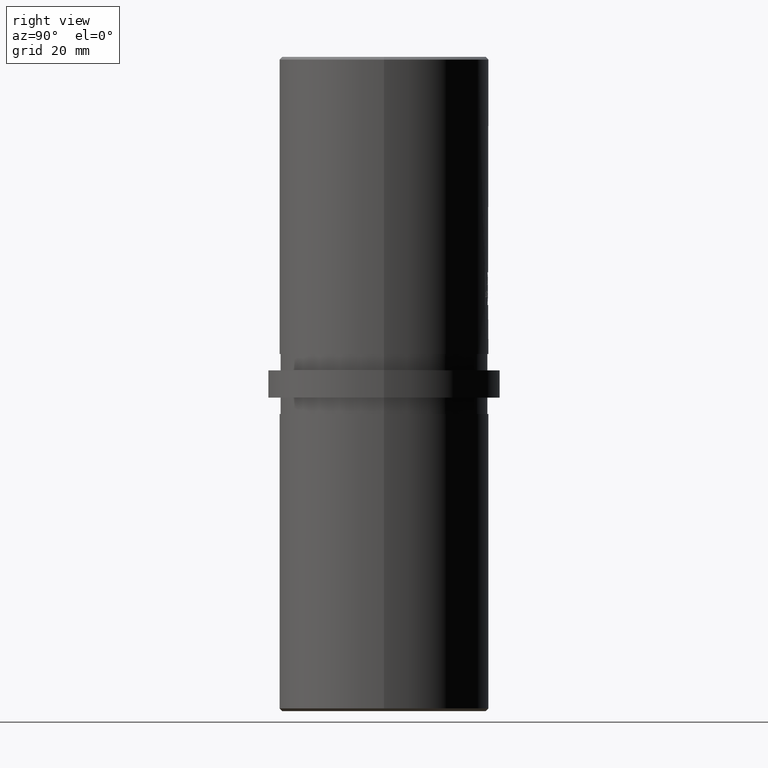
[diagram: clean part render]
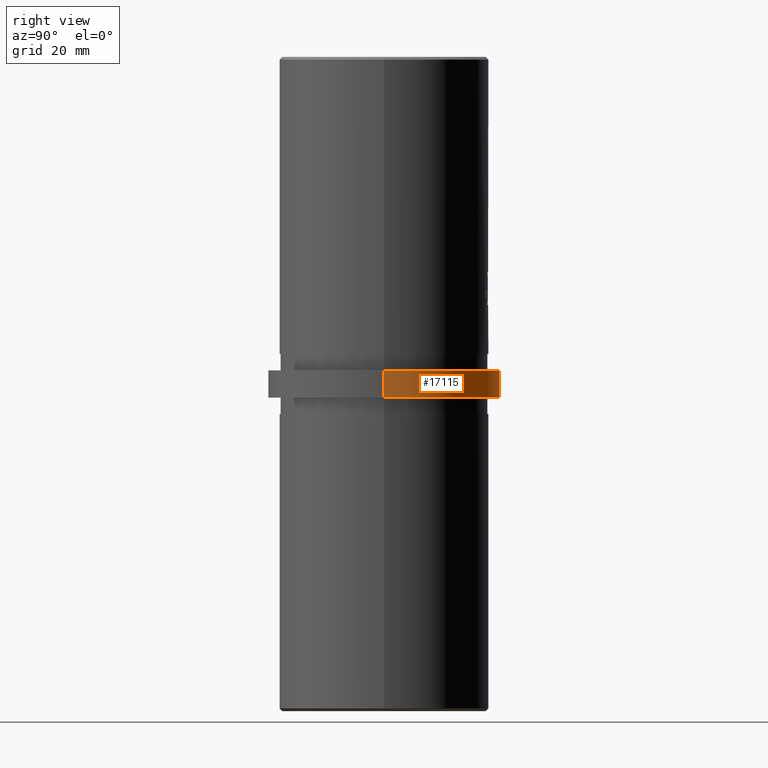
[diagram: same view with one face highlighted and labeled with its STEP entity id]
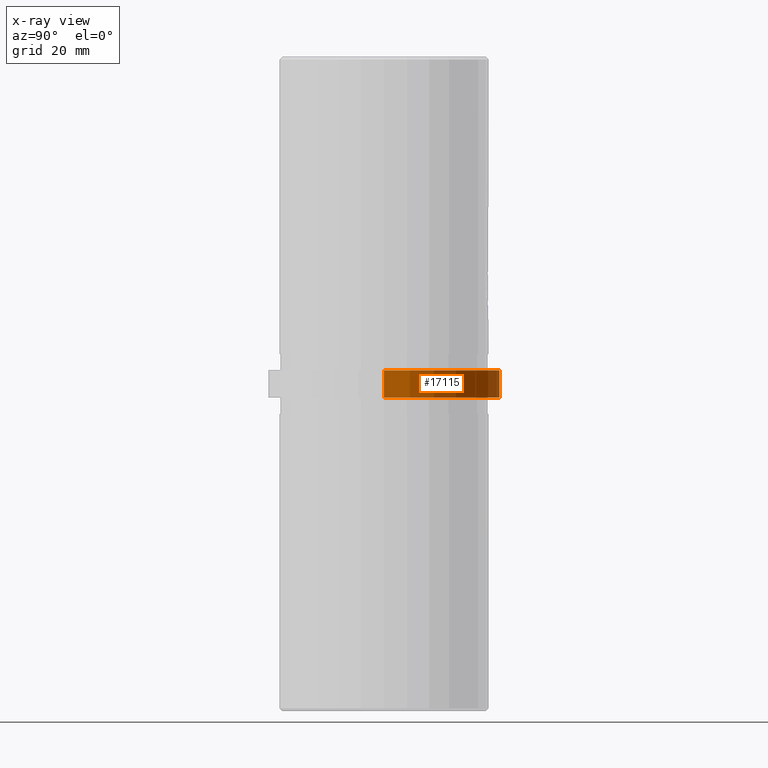
[diagram: x-ray of the same camera — body ghosted, the highlighted face saturated]
A machine part, right view. The second image highlights one B-rep face of the part: STEP entity #17115.
The next image is the same camera in x-ray: the body ghosted, the highlighted face saturated — about 0% of this face is hidden behind the body in this view.
In plain terms, the highlighted cylindrical surface (partial cylindrical patch) has radius 21.2 mm, axis along (-0, -0, -1).
Its self-contained STEP definition (entity closure, byte-faithful):
#130 = CARTESIAN_POINT ( 'NONE',  ( 0.0000000000000000000, 0.0000000000000000000, -2.500000000000000000 ) ) ;
#264 = ORIENTED_EDGE ( 'NONE', *, *, #19546, .T. ) ;
#2785 = AXIS2_PLACEMENT_3D ( 'NONE', #11213, #11295, #16261 ) ;
#4248 = DIRECTION ( 'NONE',  ( -1.000000000000000000, 0.0000000000000000000, 0.0000000000000000000 ) ) ;
#5056 = ORIENTED_EDGE ( 'NONE', *, *, #10328, .T. ) ;
#5323 = EDGE_CURVE ( 'NONE', #16511, #15430, #13612, .T. ) ;
#5388 = LINE ( 'NONE', #16420, #18393 ) ;
#5745 = ORIENTED_EDGE ( 'NONE', *, *, #9047, .F. ) ;
#6949 = CIRCLE ( 'NONE', #9897, 21.19999999999999900 ) ;
#7911 = FACE_OUTER_BOUND ( 'NONE', #20252, .T. ) ;
#7957 = DIRECTION ( 'NONE',  ( -0.0000000000000000000, -0.0000000000000000000, -1.000000000000000000 ) ) ;
#8242 = CARTESIAN_POINT ( 'NONE',  ( -21.19999999999999900, 0.0000000000000000000, -2.500000000000000000 ) ) ;
#9047 = EDGE_CURVE ( 'NONE', #20144, #16511, #11072, .T. ) ;
#9072 = VECTOR ( 'NONE', #15034, 1000.000000000000000 ) ;
#9180 = CARTESIAN_POINT ( 'NONE',  ( 21.19999999999999900, 2.596251214192388800E-015, 2.500000000000000000 ) ) ;
#9897 = AXIS2_PLACEMENT_3D ( 'NONE', #130, #13826, #12069 ) ;
#10328 = EDGE_CURVE ( 'NONE', #20144, #18174, #5388, .T. ) ;
#11072 = CIRCLE ( 'NONE', #2785, 21.19999999999999900 ) ;
#11213 = CARTESIAN_POINT ( 'NONE',  ( 0.0000000000000000000, 0.0000000000000000000, 2.500000000000000000 ) ) ;
#11295 = DIRECTION ( 'NONE',  ( 0.0000000000000000000, 0.0000000000000000000, 1.000000000000000000 ) ) ;
#12069 = DIRECTION ( 'NONE',  ( 1.000000000000000000, 0.0000000000000000000, 0.0000000000000000000 ) ) ;
#13612 = LINE ( 'NONE', #16619, #9072 ) ;
#13826 = DIRECTION ( 'NONE',  ( -0.0000000000000000000, -0.0000000000000000000, 1.000000000000000000 ) ) ;
#13970 = CARTESIAN_POINT ( 'NONE',  ( 21.19999999999999900, 2.596251214192388800E-015, -2.500000000000000000 ) ) ;
#13977 = AXIS2_PLACEMENT_3D ( 'NONE', #17687, #21130, #4248 ) ;
#14265 = CYLINDRICAL_SURFACE ( 'NONE', #13977, 21.19999999999999900 ) ;
#15034 = DIRECTION ( 'NONE',  ( -0.0000000000000000000, -0.0000000000000000000, -1.000000000000000000 ) ) ;
#15430 = VERTEX_POINT ( 'NONE', #8242 ) ;
#16261 = DIRECTION ( 'NONE',  ( 1.000000000000000000, 0.0000000000000000000, 0.0000000000000000000 ) ) ;
#16420 = CARTESIAN_POINT ( 'NONE',  ( 21.19999999999999900, 2.596251214192388800E-015, 2.500000000000000000 ) ) ;
#16511 = VERTEX_POINT ( 'NONE', #17692 ) ;
#16619 = CARTESIAN_POINT ( 'NONE',  ( -21.19999999999999900, 0.0000000000000000000, 2.500000000000000000 ) ) ;
#17115 = ADVANCED_FACE ( 'NONE', ( #7911 ), #14265, .T. ) ;
#17687 = CARTESIAN_POINT ( 'NONE',  ( 0.0000000000000000000, 0.0000000000000000000, 2.500000000000000000 ) ) ;
#17692 = CARTESIAN_POINT ( 'NONE',  ( -21.19999999999999900, 0.0000000000000000000, 2.500000000000000000 ) ) ;
#18174 = VERTEX_POINT ( 'NONE', #13970 ) ;
#18393 = VECTOR ( 'NONE', #7957, 1000.000000000000000 ) ;
#19546 = EDGE_CURVE ( 'NONE', #18174, #15430, #6949, .T. ) ;
#20144 = VERTEX_POINT ( 'NONE', #9180 ) ;
#20252 = EDGE_LOOP ( 'NONE', ( #5745, #5056, #264, #20746 ) ) ;
#20746 = ORIENTED_EDGE ( 'NONE', *, *, #5323, .F. ) ;
#21130 = DIRECTION ( 'NONE',  ( -0.0000000000000000000, -0.0000000000000000000, -1.000000000000000000 ) ) ;